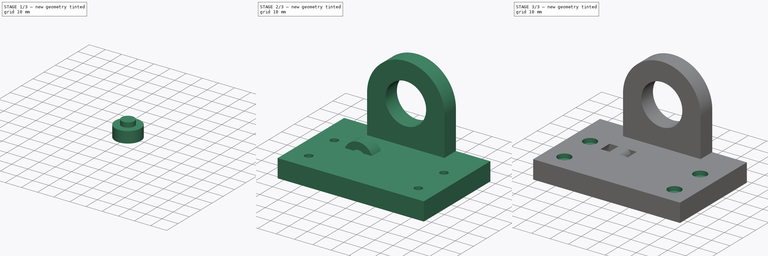
[diagram: build sequence overview — one tinted view per stage of 3, left to right]
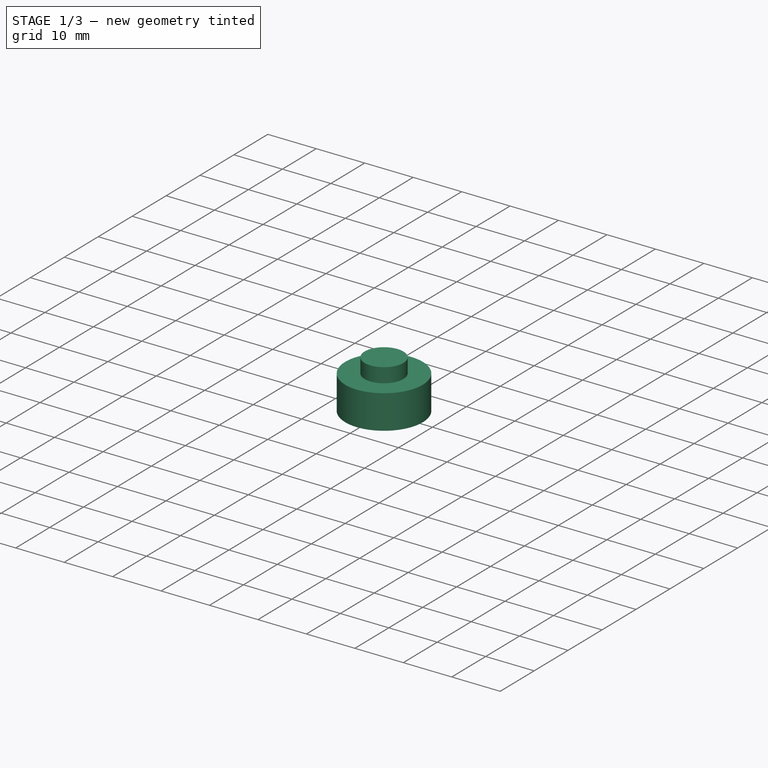
[diagram: stage 1 of 3 — iso view after this stage's code; geometry added in this stage tinted green]
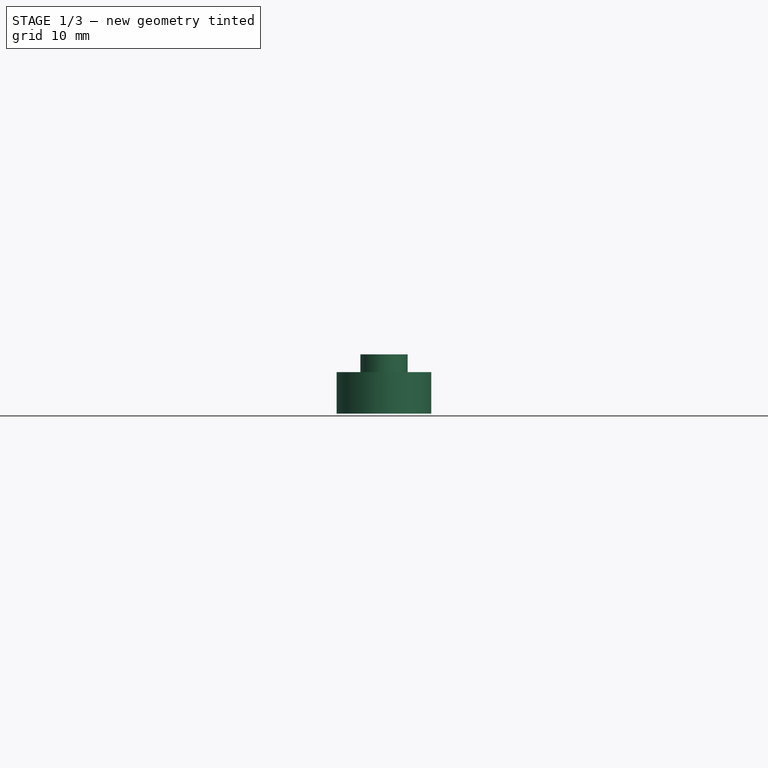
[diagram: stage 1 of 3 — front view after this stage's code; geometry added in this stage tinted green]
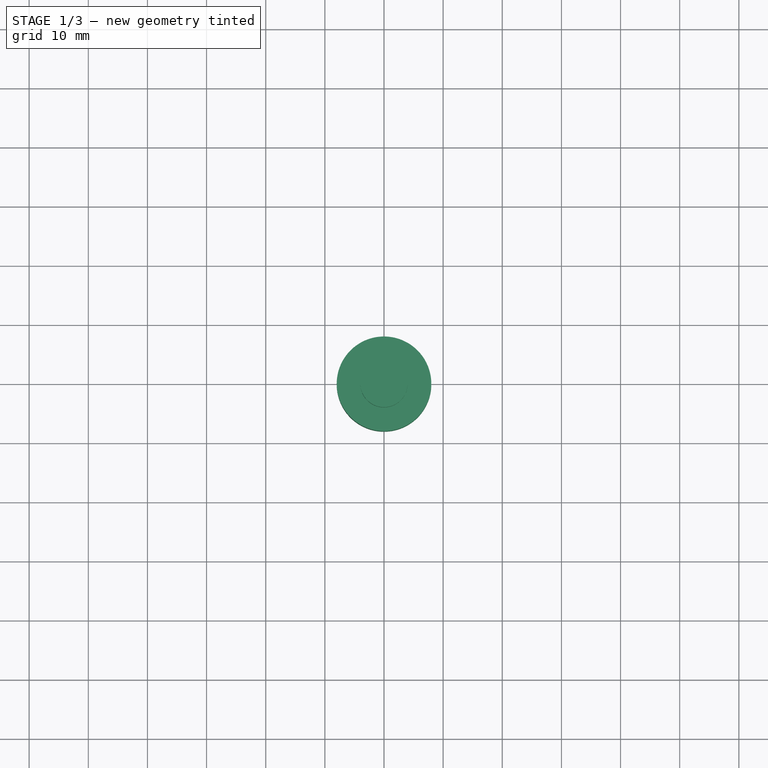
[diagram: stage 1 of 3 — top view after this stage's code; geometry added in this stage tinted green]
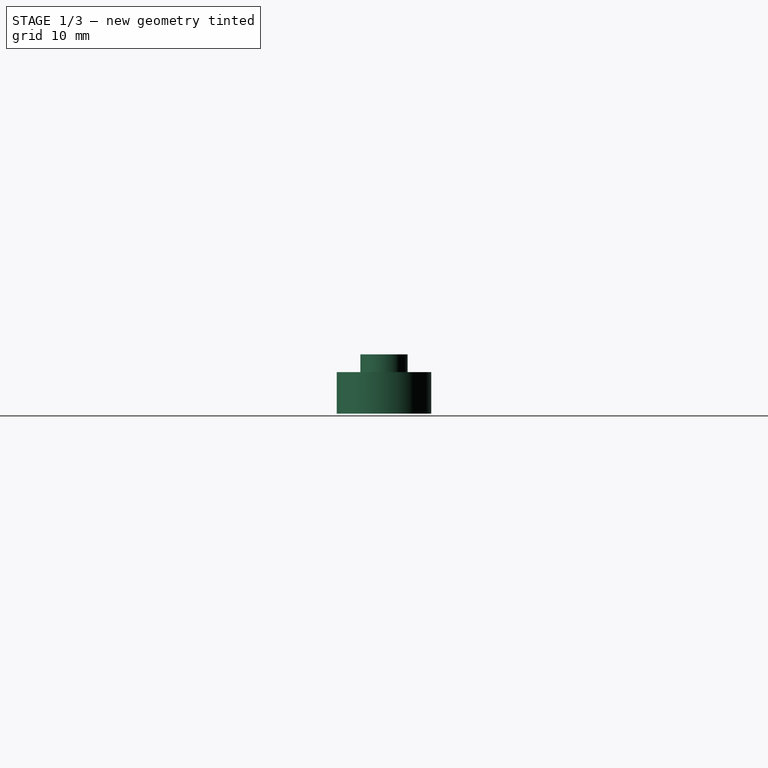
[diagram: stage 1 of 3 — right view after this stage's code; geometry added in this stage tinted green]
FCSTD DOCUMENT  (FreeCAD 0.16R6698 (Git))
Label: z-rod-mount-buttom
License: All rights reserved
LicenseURL: http://de.wikipedia.org/wiki/Alle_Rechte_vorbehalten
objects: Sketcher::SketchObject×3, PartDesign::Pad×2, Part::Cylinder×2, Part::Cut×2, PartDesign::Pocket×1
note: 13 computed .brp shape members not serialized (recipe doc carries the construction recipe); baked Part::Feature solids carry a one-line shape summary decoded from their .brp

FEATURE [Part::Cylinder] Cylinder  label="Zylinder"
  Angle = 360
  Height = 7
  Radius = 8
FEATURE [Part::Cylinder] Cylinder001  label="Zylinder001"
  Angle = 360
  Height = 10
  Radius = 4
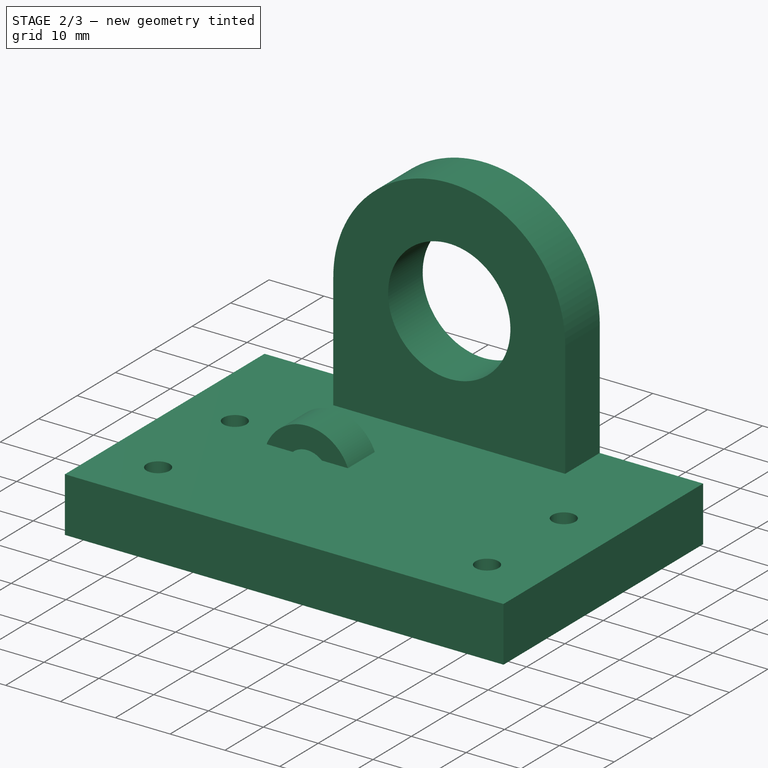
[diagram: stage 2 of 3 — iso view after this stage's code; geometry added in this stage tinted green]
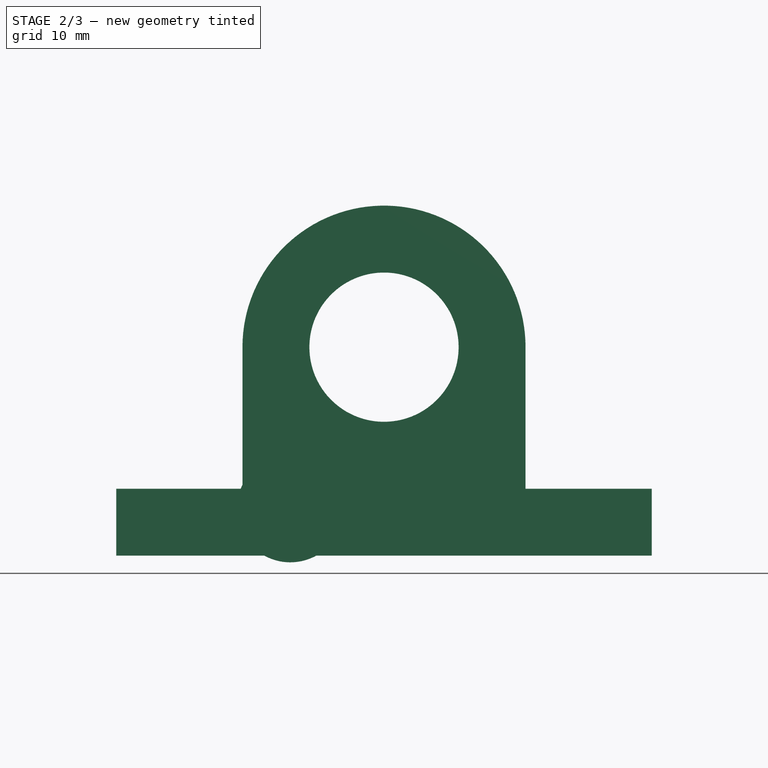
[diagram: stage 2 of 3 — front view after this stage's code; geometry added in this stage tinted green]
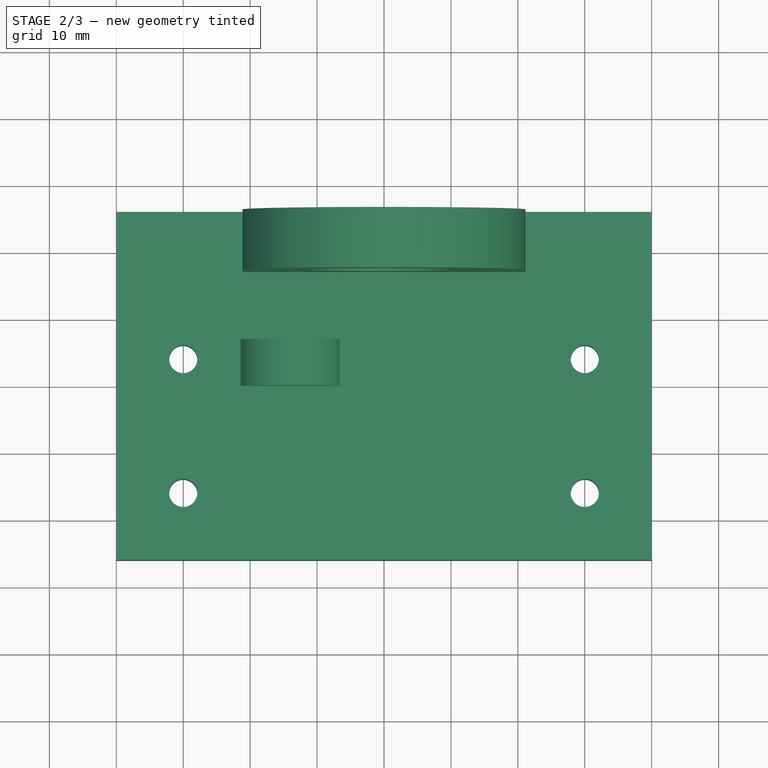
[diagram: stage 2 of 3 — top view after this stage's code; geometry added in this stage tinted green]
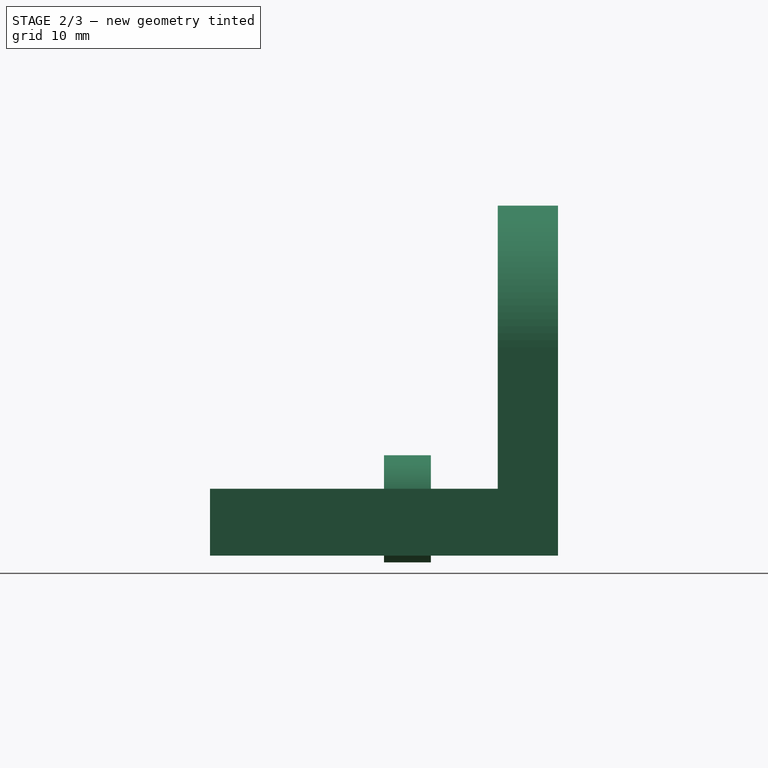
[diagram: stage 2 of 3 — right view after this stage's code; geometry added in this stage tinted green]
FEATURE [Sketcher::SketchObject] Sketch
  sketch-geometry (10):
    g0: LineSegment StartX=-40 StartY=26 StartZ=0 EndX=40 EndY=26 EndZ=0
    g1: LineSegment StartX=40 StartY=26 StartZ=0 EndX=40 EndY=-26 EndZ=0
    g2: LineSegment StartX=40 StartY=-26 StartZ=0 EndX=-40 EndY=-26 EndZ=0
    g3: LineSegment StartX=-40 StartY=-26 StartZ=0 EndX=-40 EndY=26 EndZ=0
    g4: Circle CenterX=-30 CenterY=-16 CenterZ=0 NormalX=0 NormalY=0 NormalZ=1 Radius=2.1
    g5: Circle CenterX=-30 CenterY=4 CenterZ=0 NormalX=0 NormalY=0 NormalZ=1 Radius=2.1
    g6: Circle CenterX=30 CenterY=4 CenterZ=0 NormalX=0 NormalY=0 NormalZ=1 Radius=2.1
    g7: Circle CenterX=30 CenterY=-16 CenterZ=0 NormalX=0 NormalY=0 NormalZ=1 Radius=2.1
    g8: LineSegment StartX=-40 StartY=-16 StartZ=0 EndX=40 EndY=-16 EndZ=0
    g9: LineSegment StartX=40 StartY=4 StartZ=0 EndX=-40 EndY=4 EndZ=0
  constraints (31):
    c: Coincident(g0,g1)
    c: Coincident(g1,g2)
    c: Coincident(g2,g3)
    c: Coincident(g3,g0)
    c: Horizontal(g0)
    c: Horizontal(g2)
    c: Vertical(g1)
    c: Vertical(g3)
    c: Symmetric(g0,g2,g-1)
    c: Symmetric(g0,g0,g-2)
    c: DistanceX(g0,g0) = 80
    c: DistanceY(g1,g1) = 52
    c: Equal(g4,g5)
    c: Equal(g6,g7)
    c: PointOnObject(g8,g3)
    c: PointOnObject(g8,g1)
    c: Horizontal(g8)
    c: PointOnObject(g9,g1)
    c: PointOnObject(g9,g3)
    c: Horizontal(g9)
    c: DistanceY(g1,g9) = 30
    c: DistanceY(g1,g8) = 10
    c: PointOnObject(g7,g8)
    c: PointOnObject(g6,g9)
    c: PointOnObject(g4,g8)
    c: Radius(g4) = 2.1
    c: DistanceX(g6,g9) = 10
    c: DistanceX(g7,g8) = 10
    c: DistanceX(g8,g4) = 10
    c: PointOnObject(g5,g9)
    c: DistanceX(g9,g5) = 10
FEATURE [PartDesign::Pad] Pad
  Length = 10
  Length2 = 100
  Sketch = -> Sketch
  Type = 0
FEATURE [Sketcher::SketchObject] Sketch009
  Placement = pos=(0,26,0) rot=(0,0.707107,0.707107;3.14159rad)
  Support = -> Pad [Face1]
  sketch-geometry (5):
    g0: Circle CenterX=0 CenterY=31.15 CenterZ=0 NormalX=0 NormalY=0 NormalZ=1 Radius=11.15
    g1: ArcOfCircle CenterX=0 CenterY=31.15 CenterZ=0 NormalX=0 NormalY=0 NormalZ=1 Radius=21.15 StartAngle=1.57399e-06 EndAngle=3.14159
    g2: LineSegment StartX=-21.15 StartY=31.15 StartZ=0 EndX=-21.15 EndY=10 EndZ=0
    g3: LineSegment StartX=-21.15 StartY=10 StartZ=0 EndX=21.15 EndY=10 EndZ=0
    g4: LineSegment StartX=21.15 StartY=10 StartZ=0 EndX=21.15 EndY=31.15 EndZ=0
  constraints (14):
    c: PointOnObject(g0,g-2)
    c: Coincident(g1,g0)
    c: Radius(g0) = 11.15
    c: Radius(g1) = 21.15
    c: Tangent(g1,g2) = -1.5708
    c: Coincident(g2,g3)
    c: Horizontal(g3)
    c: Coincident(g3,g4)
    c: Coincident(g4,g1)
    c: Vertical(g4)
    c: Tangent(g4,g1)
    c: DistanceY(g-1,g2) = 10
    c: Perpendicular(g2,g3)
    c: DistanceY(g2,g2) = 21.15
FEATURE [PartDesign::Pad] Pad001
  Length = 9
  Length2 = 100
  Reversed = true
  Sketch = -> Sketch009
  Type = 0
FEATURE [Part::Cut] Cut
  Base = -> Cylinder
  Placement = pos=(-14,0,7) rot=(-0.57735,0.57735,0.57735;2.0944rad)
  Tool = -> Cylinder001
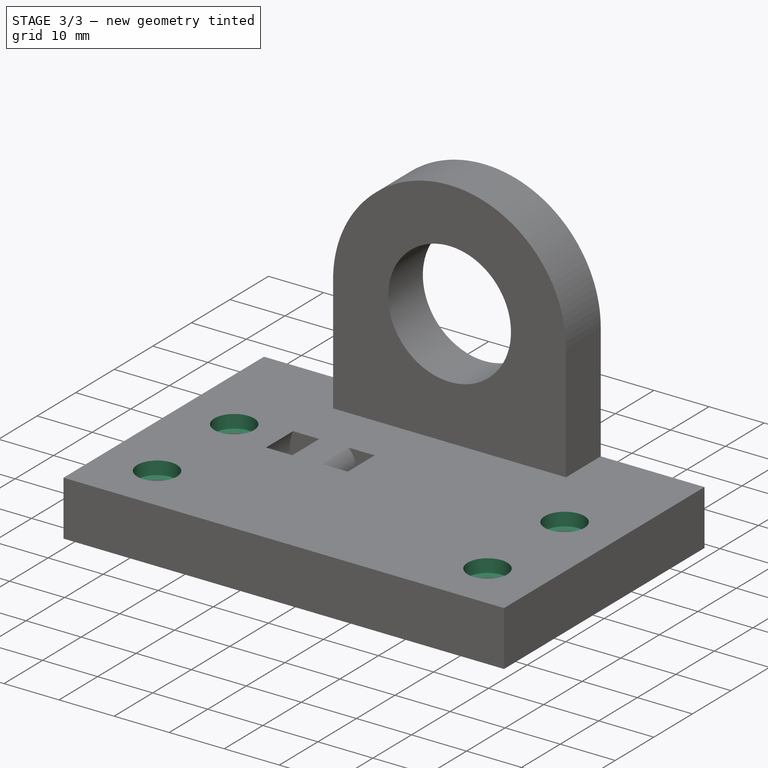
[diagram: stage 3 of 3 — iso view after this stage's code; geometry added in this stage tinted green]
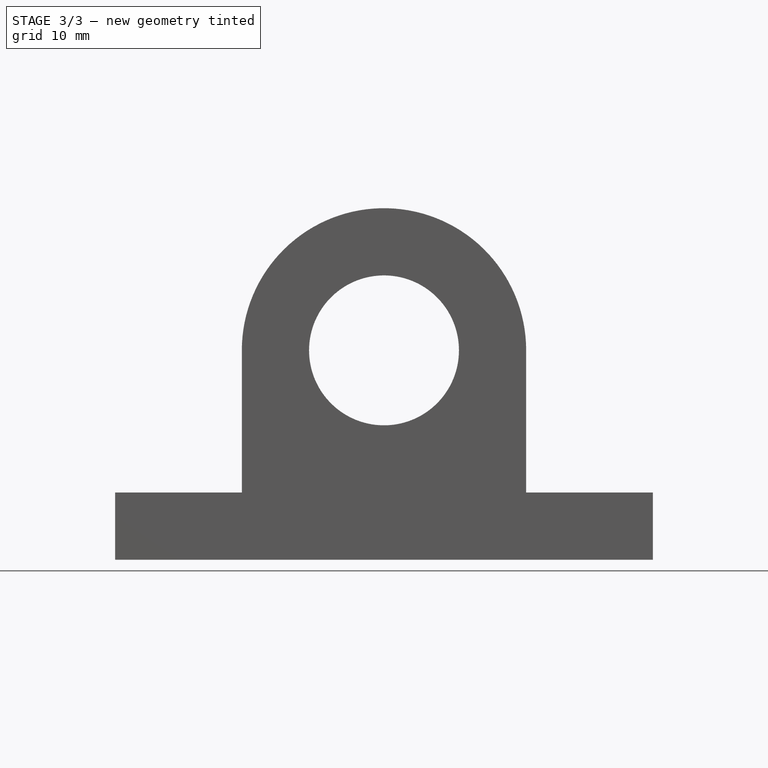
[diagram: stage 3 of 3 — front view after this stage's code; geometry added in this stage tinted green]
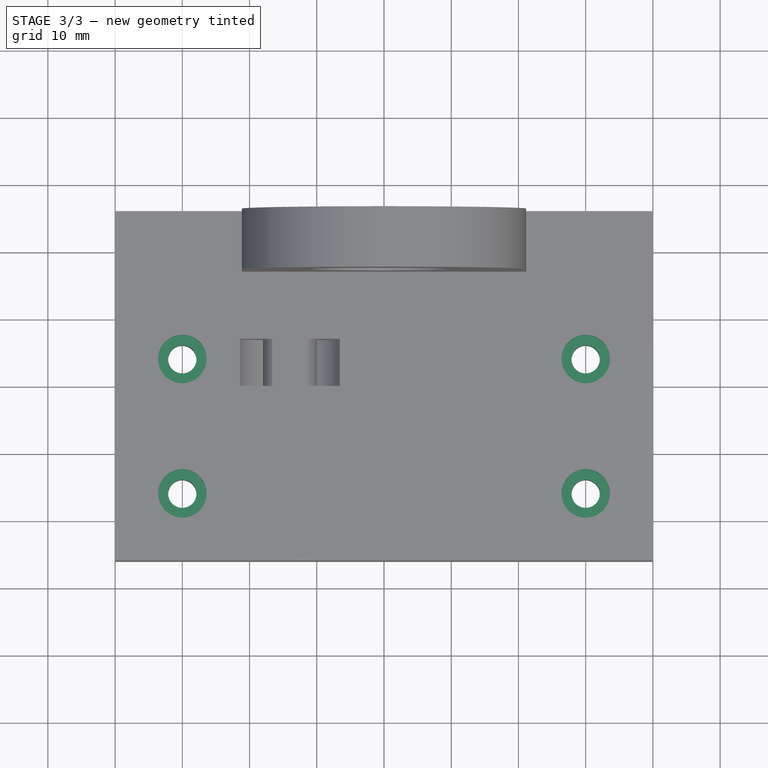
[diagram: stage 3 of 3 — top view after this stage's code; geometry added in this stage tinted green]
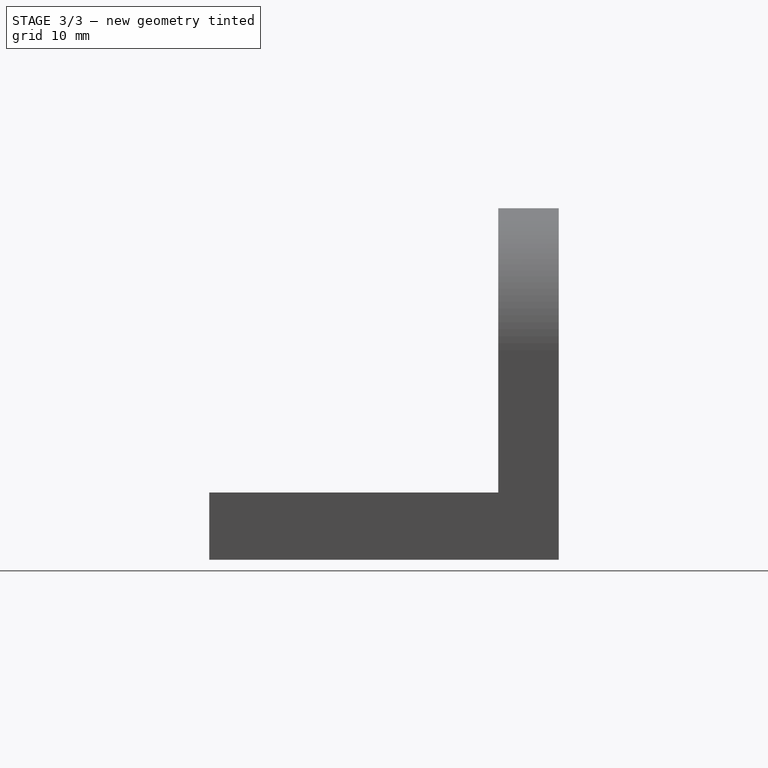
[diagram: stage 3 of 3 — right view after this stage's code; geometry added in this stage tinted green]
FEATURE [Part::Cut] Cut001
  Base = -> Pad001
  Tool = -> Cut
FEATURE [Sketcher::SketchObject] Sketch010
  ExternalGeometry = -> [Cut001]
  Placement = pos=(0,0,10) rot=(0,0,1;0rad)
  Support = -> Cut001 [Face6]
  sketch-geometry (4):
    g0: Circle CenterX=-30 CenterY=4 CenterZ=0 NormalX=0 NormalY=0 NormalZ=1 Radius=3.6
    g1: Circle CenterX=-30 CenterY=-16 CenterZ=0 NormalX=0 NormalY=0 NormalZ=1 Radius=3.6
    g2: Circle CenterX=30 CenterY=-16 CenterZ=0 NormalX=0 NormalY=0 NormalZ=1 Radius=3.6
    g3: Circle CenterX=30 CenterY=4 CenterZ=0 NormalX=0 NormalY=0 NormalZ=1 Radius=3.6
  constraints (8):
    c: Coincident(g0,g-6)
    c: Coincident(g2,g-4)
    c: Coincident(g3,g-3)
    c: Equal(g0,g1)
    c: Equal(g1,g3)
    c: Equal(g3,g2)
    c: Radius(g0) = 3.6
    c: Coincident(g1,g-5)
FEATURE [PartDesign::Pocket] Pocket
  Length = 2.4
  Sketch = -> Sketch010
  Type = 0
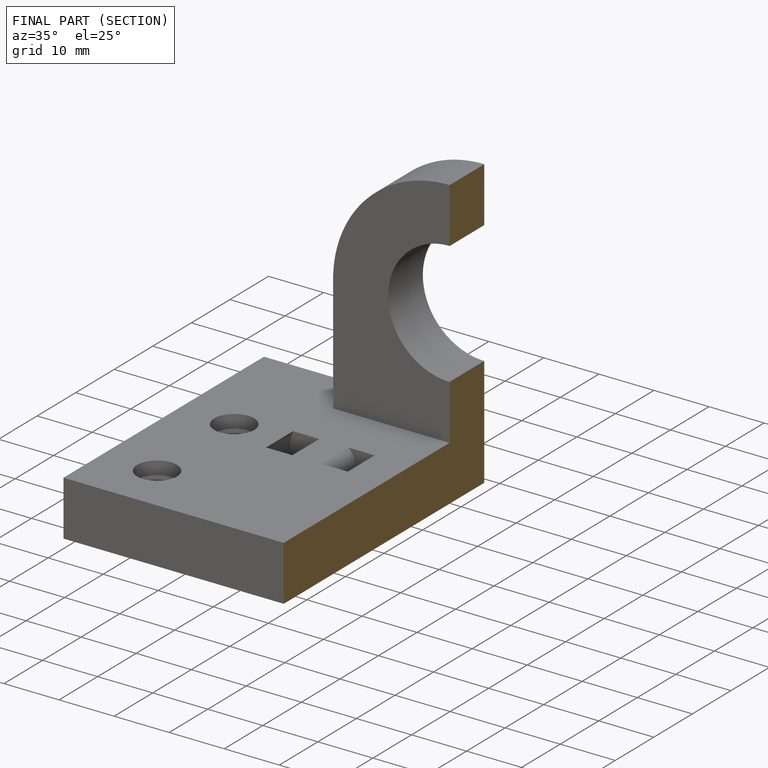
[diagram: finished part — half-section view (interior)]
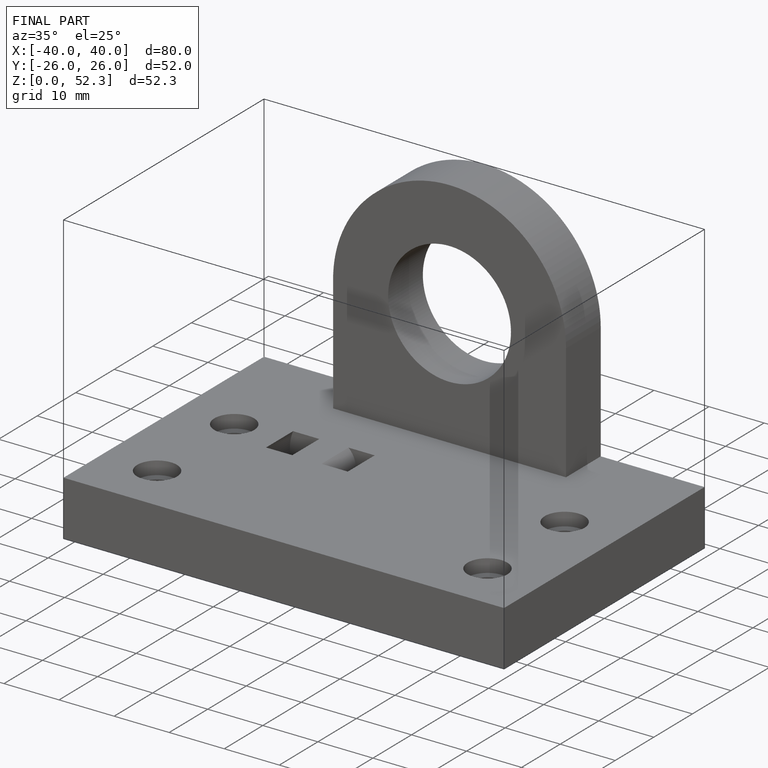
[diagram: finished part — iso view with bounding-box wireframe]
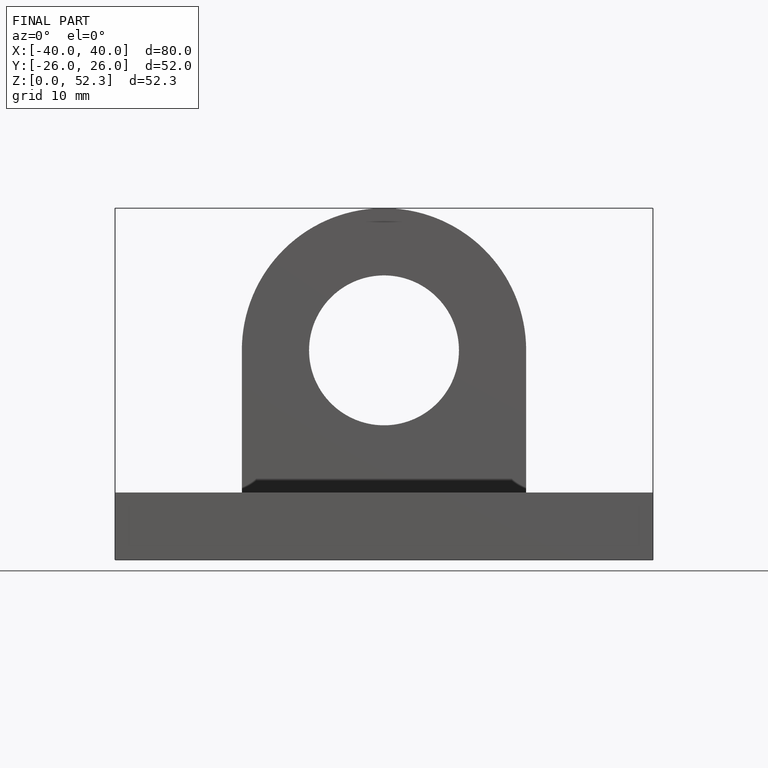
[diagram: finished part — front view with bounding-box wireframe]
